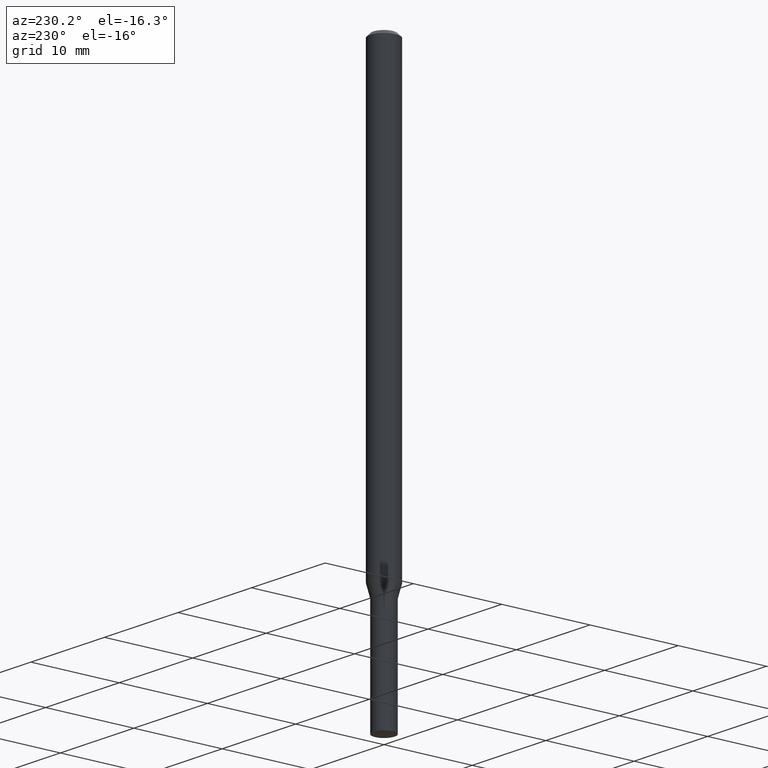
[diagram: clean part render]
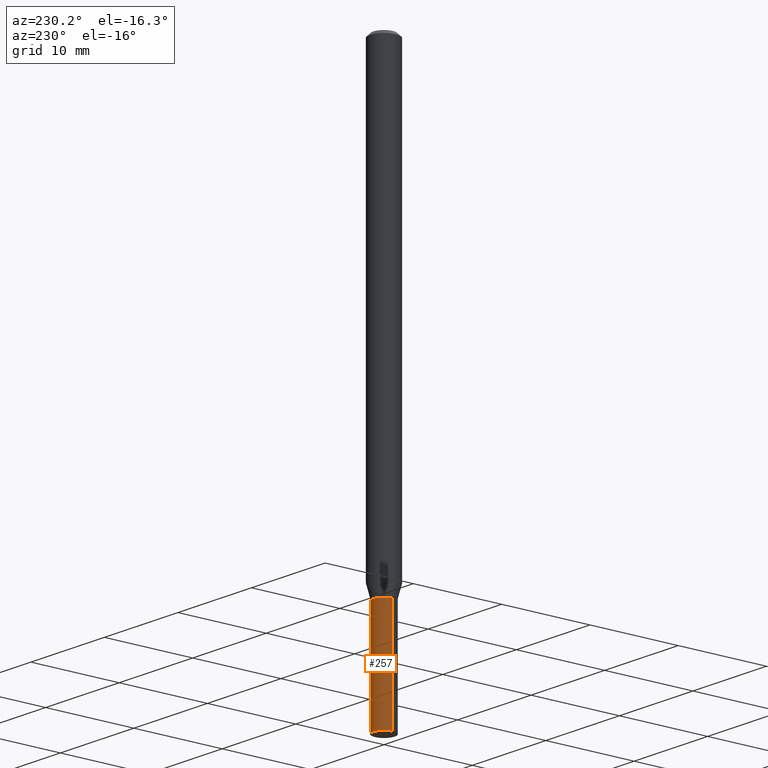
[diagram: same view with one face highlighted and labeled with its STEP entity id]
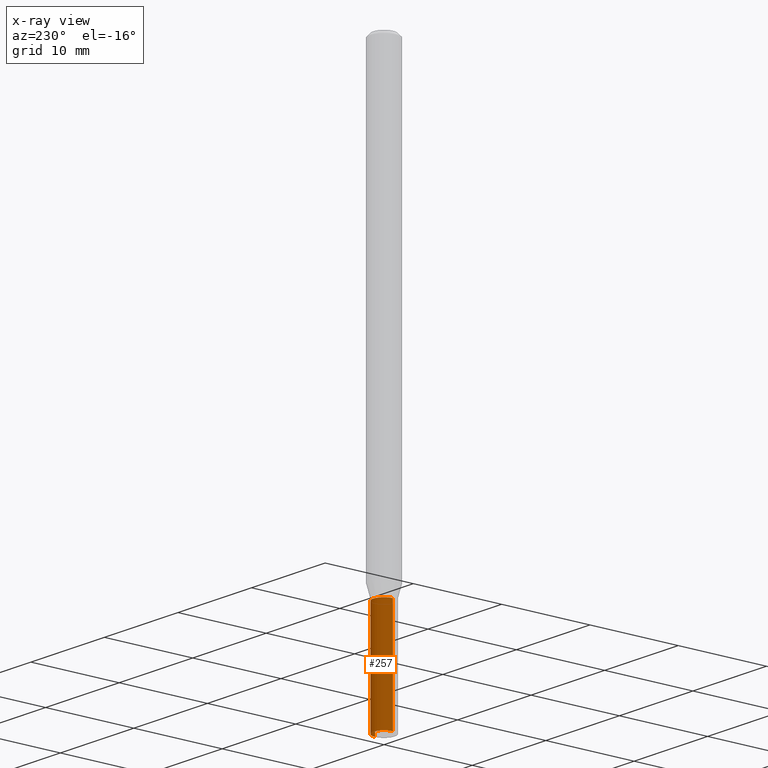
[diagram: x-ray of the same camera — body ghosted, the highlighted face saturated]
A machine part, auxiliary view. The second image highlights one B-rep face of the part: STEP entity #257.
The next image is the same camera in x-ray: the body ghosted, the highlighted face saturated — about 0% of this face is hidden behind the body in this view.
In plain terms, the highlighted cylindrical surface (edge-blend (fillet) strip) has radius 1.2065 mm, axis along (-0, 0, 1).
Its self-contained STEP definition (entity closure, byte-faithful):
#13 = DIRECTION ( 'NONE',  ( 1.000000000000000000, -6.982962677686283277E-15, 0.000000000000000000 ) ) ;
#25 = CARTESIAN_POINT ( 'NONE',  ( 0.04749999999999999362, -7.401940438347467010E-15, -2.024999999999999911 ) ) ;
#29 = DIRECTION ( 'NONE',  ( -2.445468806185136597E-29, 3.491481338843145583E-15, 1.000000000000000000 ) ) ;
#54 = LINE ( 'NONE', #388, #293 ) ;
#63 = CARTESIAN_POINT ( 'NONE',  ( 0.000000000000000000, 0.000000000000000000, 0.000000000000000000 ) ) ;
#98 = DIRECTION ( 'NONE',  ( -2.445468806185136597E-29, 3.491481338843145583E-15, 1.000000000000000000 ) ) ;
#100 = EDGE_CURVE ( 'NONE', #309, #465, #459, .T. ) ;
#104 = CARTESIAN_POINT ( 'NONE',  ( 6.113672015462842613E-29, -8.728703347107864943E-15, -2.500000000000000000 ) ) ;
#106 = EDGE_LOOP ( 'NONE', ( #160, #394, #285, #300 ) ) ;
#123 = AXIS2_PLACEMENT_3D ( 'NONE', #104, #323, #13 ) ;
#143 = EDGE_CURVE ( 'NONE', #309, #272, #212, .T. ) ;
#145 = AXIS2_PLACEMENT_3D ( 'NONE', #358, #29, #295 ) ;
#160 = ORIENTED_EDGE ( 'NONE', *, *, #100, .T. ) ;
#165 = AXIS2_PLACEMENT_3D ( 'NONE', #63, #98, #247 ) ;
#166 = CARTESIAN_POINT ( 'NONE',  ( -0.04749999999999999362, -7.561968729646570122E-15, -2.500000000000000000 ) ) ;
#212 = LINE ( 'NONE', #316, #397 ) ;
#216 = CARTESIAN_POINT ( 'NONE',  ( 0.04749999999999999362, -9.060394074297963242E-15, -2.500000000000000000 ) ) ;
#220 = VERTEX_POINT ( 'NONE', #288 ) ;
#247 = DIRECTION ( 'NONE',  ( 1.000000000000000000, -6.982962677686267499E-15, 4.876176775795935793E-29 ) ) ;
#250 = FACE_OUTER_BOUND ( 'NONE', #106, .T. ) ;
#252 = EDGE_CURVE ( 'NONE', #465, #220, #54, .T. ) ;
#257 = ADVANCED_FACE ( 'NONE', ( #250 ), #450, .T. ) ;
#272 = VERTEX_POINT ( 'NONE', #25 ) ;
#276 = CIRCLE ( 'NONE', #145, 0.04749999999999999362 ) ;
#280 = DIRECTION ( 'NONE',  ( -2.445468806185136877E-29, 3.491481338843145188E-15, 1.000000000000000000 ) ) ;
#285 = ORIENTED_EDGE ( 'NONE', *, *, #317, .F. ) ;
#288 = CARTESIAN_POINT ( 'NONE',  ( -0.04749999999999999362, -7.561968729646570122E-15, -2.024999999999999911 ) ) ;
#293 = VECTOR ( 'NONE', #280, 39.37007874015748143 ) ;
#295 = DIRECTION ( 'NONE',  ( 1.000000000000000000, -6.982962677686261977E-15, 0.000000000000000000 ) ) ;
#300 = ORIENTED_EDGE ( 'NONE', *, *, #143, .F. ) ;
#309 = VERTEX_POINT ( 'NONE', #216 ) ;
#316 = CARTESIAN_POINT ( 'NONE',  ( 0.04749999999999999362, -3.316907271900976589E-16, 2.316183968503069081E-30 ) ) ;
#317 = EDGE_CURVE ( 'NONE', #272, #220, #276, .T. ) ;
#323 = DIRECTION ( 'NONE',  ( -2.445468806185136597E-29, 3.491481338843145583E-15, 1.000000000000000000 ) ) ;
#358 = CARTESIAN_POINT ( 'NONE',  ( 4.952074332524902057E-29, -7.070249711157369499E-15, -2.024999999999999911 ) ) ;
#386 = DIRECTION ( 'NONE',  ( -2.445468806185136877E-29, 3.491481338843145188E-15, 1.000000000000000000 ) ) ;
#388 = CARTESIAN_POINT ( 'NONE',  ( -0.04749999999999999362, 3.375077994860475429E-16, -2.336494167871079910E-30 ) ) ;
#394 = ORIENTED_EDGE ( 'NONE', *, *, #252, .T. ) ;
#397 = VECTOR ( 'NONE', #386, 39.37007874015748143 ) ;
#450 = CYLINDRICAL_SURFACE ( 'NONE', #165, 0.04749999999999999362 ) ;
#459 = CIRCLE ( 'NONE', #123, 0.04749999999999999362 ) ;
#465 = VERTEX_POINT ( 'NONE', #166 ) ;